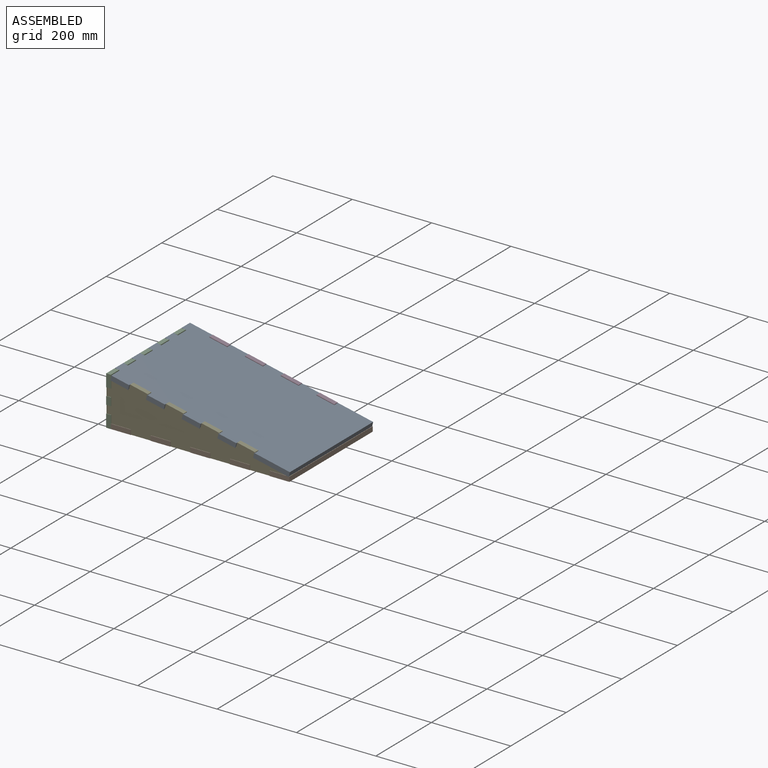
[diagram: assembled view]
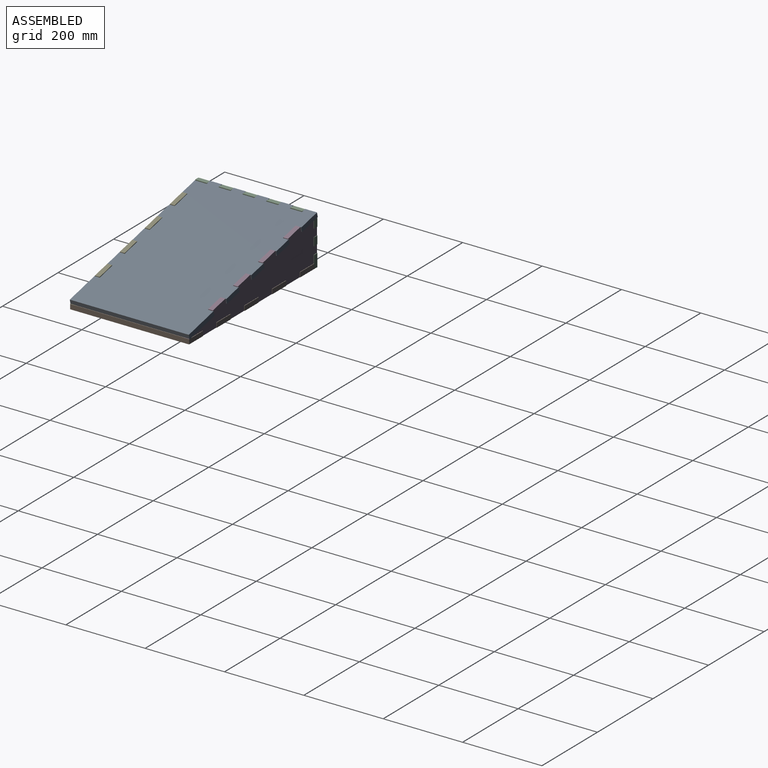
[diagram: assembled view, second angle]
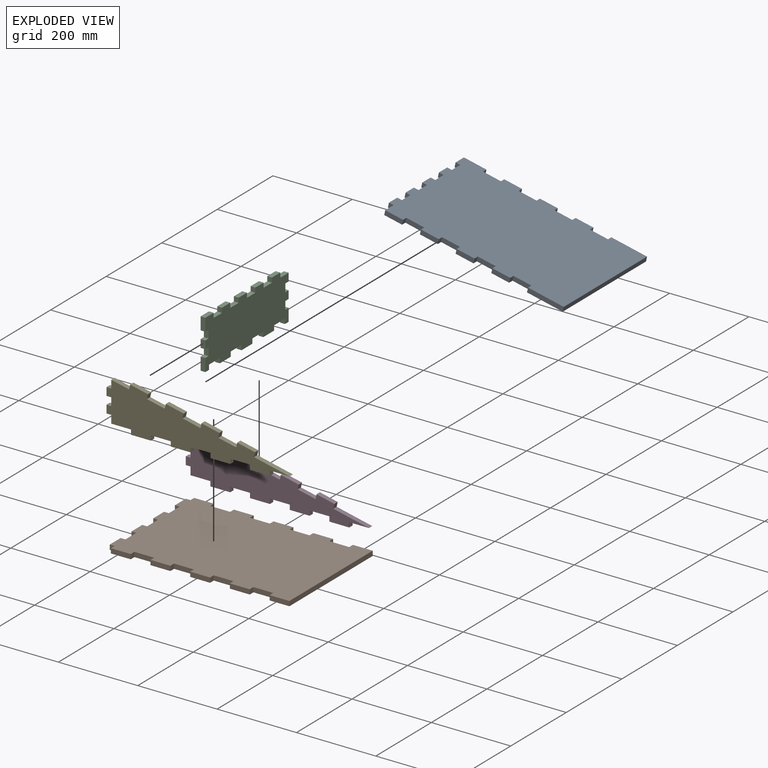
[diagram: exploded view]
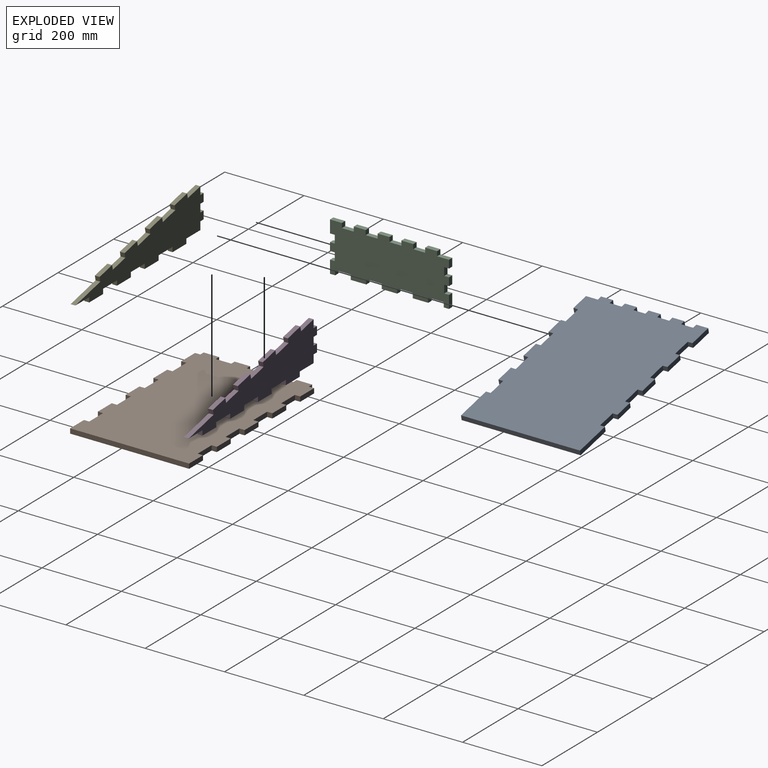
[diagram: exploded view, second angle]
ASSEMBLY  parts=5 mates=14
PART A: 56 faces, bbox 464.2x300x114.3 mm
  f0: plane 30x11.71mm, normal (-0.98,0,0.22), area 360mm2, adj f1,f53,f54,f55
  f1: plane 14.32x14.32mm, normal (0,-1,0), area 144mm2, adj f0,f2,f54,f55
  f2: plane 30x11.71mm, normal (-0.98,0,0.22), area 360mm2, adj f1,f3,f54,f55
  f3: plane 14.32x14.32mm, normal (0,1,0), area 144mm2, adj f2,f4,f54,f55
  f4: plane 30x11.71mm, normal (-0.98,0,0.22), area 360mm2, adj f3,f5,f54,f55
  f5: plane 14.32x14.32mm, normal (0,-1,0), area 144mm2, adj f4,f6,f54,f55
  f6: plane 30x11.71mm, normal (-0.98,0,0.22), area 360mm2, adj f5,f7,f54,f55
  f7: plane 14.32x14.32mm, normal (0,1,0), area 144mm2, adj f6,f8,f54,f55
  f8: plane 30x11.71mm, normal (-0.98,0,0.22), area 360mm2, adj f7,f9,f54,f55
  f9: plane 14.32x14.32mm, normal (0,-1,0), area 144mm2, adj f8,f10,f54,f55
  f10: plane 30x11.71mm, normal (-0.98,0,0.22), area 360mm2, adj f9,f11,f54,f55
  f11: plane 14.32x14.32mm, normal (0,1,0), area 144mm2, adj f10,f12,f54,f55
  f12: plane 30x11.71mm, normal (-0.98,0,0.22), area 360mm2, adj f11,f13,f54,f55
  f13: plane 14.32x14.32mm, normal (0,-1,0), area 144mm2, adj f12,f14,f54,f55
  f14: plane 30x11.71mm, normal (-0.98,0,0.22), area 360mm2, adj f13,f15,f54,f55
  f15: plane 14.32x14.32mm, normal (0,1,0), area 144mm2, adj f14,f16,f54,f55
  f16: plane 30x11.71mm, normal (-0.98,0,0.22), area 360mm2, adj f15,f17,f54,f55
  f17: plane 14.32x14.32mm, normal (0,-1,0), area 144mm2, adj f16,f18,f54,f55
  f18: plane 29.99x11.71mm, normal (-0.98,0,0.22), area 359.9mm2, adj f17,f19,f54,f55
  f19: plane 47.6x21.71mm, normal (0,-1,0), area 553.1mm2, adj f18,f20,f54,f55
  f20: plane 12.02x11.71mm, normal (0.98,0,-0.22), area 144.2mm2, adj f19,f21,f54,f55
  f21: plane 47.59x21.71mm, normal (0,-1,0), area 553mm2, adj f20,f22,f54,f55
  f22: plane 12.02x11.71mm, normal (-0.98,0,0.22), area 144.2mm2, adj f21,f23,f54,f55
  f23: plane 47.59x21.71mm, normal (0,-1,0), area 553mm2, adj f22,f24,f54,f55
  f24: plane 12.02x11.71mm, normal (0.98,0,-0.22), area 144.2mm2, adj f23,f25,f54,f55
  f25: plane 47.59x21.71mm, normal (0,-1,0), area 553mm2, adj f24,f26,f54,f55
  f26: plane 12.02x11.71mm, normal (-0.98,0,0.22), area 144.2mm2, adj f25,f27,f54,f55
  f27: plane 47.59x21.71mm, normal (0,-1,0), area 553mm2, adj f26,f28,f54,f55
  f28: plane 12.02x11.71mm, normal (0.98,0,-0.22), area 144.2mm2, adj f27,f29,f54,f55
  f29: plane 47.59x21.71mm, normal (0,-1,0), area 553mm2, adj f28,f30,f54,f55
  f30: plane 12.02x11.71mm, normal (-0.98,0,0.22), area 144.2mm2, adj f29,f31,f54,f55
  f31: plane 47.59x21.71mm, normal (0,-1,0), area 553mm2, adj f30,f32,f54,f55
  f32: plane 12.02x11.71mm, normal (0.98,0,-0.22), area 144.2mm2, adj f31,f33,f54,f55
  f33: plane 47.59x21.71mm, normal (0,-1,0), area 553mm2, adj f32,f34,f54,f55
  f34: plane 12.02x11.71mm, normal (-0.98,0,0.22), area 144.2mm2, adj f33,f35,f54,f55
  f35: plane 92.58x31.71mm, normal (0,-1,0), area 1106mm2, adj f34,f36,f54,f55
  f36: plane 299.96x11.71mm, normal (0.98,0,-0.22), area 3599.5mm2, adj f35,f37,f54,f55
  f37: plane 92.58x31.71mm, normal (0,1,0), area 1106mm2, adj f36,f38,f54,f55
  f38: plane 12.02x11.71mm, normal (-0.98,0,0.22), area 144.2mm2, adj f37,f39,f54,f55
  f39: plane 47.59x21.71mm, normal (0,1,0), area 553mm2, adj f38,f40,f54,f55
  f40: plane 12.02x11.71mm, normal (0.98,0,-0.22), area 144.2mm2, adj f39,f41,f54,f55
  f41: plane 47.59x21.71mm, normal (0,1,0), area 553mm2, adj f40,f42,f54,f55
  f42: plane 12.02x11.71mm, normal (-0.98,0,0.22), area 144.2mm2, adj f41,f43,f54,f55
  f43: plane 47.59x21.71mm, normal (0,1,0), area 553mm2, adj f42,f44,f54,f55
  f44: plane 12.02x11.71mm, normal (0.98,0,-0.22), area 144.2mm2, adj f43,f45,f54,f55
  f45: plane 47.59x21.71mm, normal (0,1,0), area 553mm2, adj f44,f46,f54,f55
  f46: plane 12.02x11.71mm, normal (-0.98,0,0.22), area 144.2mm2, adj f45,f47,f54,f55
  f47: plane 47.59x21.71mm, normal (0,1,0), area 553mm2, adj f46,f48,f54,f55
  f48: plane 12.02x11.71mm, normal (0.98,0,-0.22), area 144.2mm2, adj f47,f49,f54,f55
  f49: plane 47.59x21.71mm, normal (0,1,0), area 553mm2, adj f48,f50,f54,f55
  f50: plane 12.02x11.71mm, normal (-0.98,0,0.22), area 144.2mm2, adj f49,f51,f54,f55
  f51: plane 47.59x21.71mm, normal (0,1,0), area 553mm2, adj f50,f52,f54,f55
  f52: plane 12.02x11.71mm, normal (0.98,0,-0.22), area 144.2mm2, adj f51,f53,f54,f55
  f53: plane 59.31x24.32mm, normal (0,1,0), area 697.1mm2, adj f0,f52,f54,f55
  f54: plane 461.6x299.96mm, normal (0.22,0,0.98), area 135609mm2, adj f0,f1,f2,f3,f4,f5,f6,f7
  f55: plane 461.6x299.96mm, normal (-0.22,0,-0.98), area 135609mm2, adj f0,f1,f2,f3,f4,f5,f6,f7
PART B: 54 faces, bbox 461.9x300x12 mm
  f0: plane 299.96x12mm, normal (1,0,0), area 3599.5mm2, adj f1,f51,f52,f53
  f1: plane 49.89x12mm, normal (0,-1,0), area 598.7mm2, adj f0,f2,f52,f53
  f2: plane 13.21x12mm, normal (-1,0,0), area 158.5mm2, adj f1,f3,f52,f53
  f3: plane 50x12mm, normal (0,-1,0), area 600mm2, adj f2,f4,f52,f53
  f4: plane 13.21x12mm, normal (1,0,0), area 158.5mm2, adj f3,f5,f52,f53
  f5: plane 50x12mm, normal (0,-1,0), area 600mm2, adj f4,f6,f52,f53
  f6: plane 13.21x12mm, normal (-1,0,0), area 158.5mm2, adj f5,f7,f52,f53
  f7: plane 50x12mm, normal (0,-1,0), area 600mm2, adj f6,f8,f52,f53
  f8: plane 13.21x12mm, normal (1,0,0), area 158.5mm2, adj f7,f9,f52,f53
  f9: plane 50x12mm, normal (0,-1,0), area 600mm2, adj f8,f10,f52,f53
  f10: plane 13.21x12mm, normal (-1,0,0), area 158.5mm2, adj f9,f11,f52,f53
  f11: plane 50x12mm, normal (0,-1,0), area 600mm2, adj f10,f12,f52,f53
  f12: plane 13.21x12mm, normal (1,0,0), area 158.5mm2, adj f11,f13,f52,f53
  f13: plane 50x12mm, normal (0,-1,0), area 600mm2, adj f12,f14,f52,f53
  f14: plane 13.21x12mm, normal (-1,0,0), area 158.5mm2, adj f13,f15,f52,f53
  f15: plane 50x12mm, normal (0,-1,0), area 600mm2, adj f14,f16,f52,f53
  f16: plane 13.21x12mm, normal (1,0,0), area 158.5mm2, adj f15,f17,f52,f53
  f17: plane 50x12mm, normal (0,-1,0), area 600mm2, adj f16,f18,f52,f53
  f18: plane 13.21x12mm, normal (-1,0,0), area 158.5mm2, adj f17,f19,f52,f53
  f19: plane 12.02x12mm, normal (0,-1,0), area 144.2mm2, adj f18,f20,f52,f53
  f20: plane 39.08x12mm, normal (-1,0,0), area 468.9mm2, adj f19,f21,f52,f53
  f21: plane 12.02x12mm, normal (0,1,0), area 144.2mm2, adj f20,f22,f52,f53
  f22: plane 39.08x12mm, normal (-1,0,0), area 468.9mm2, adj f21,f23,f52,f53
  f23: plane 12.02x12mm, normal (0,-1,0), area 144.2mm2, adj f22,f24,f52,f53
  f24: plane 39.08x12mm, normal (-1,0,0), area 468.9mm2, adj f23,f25,f52,f53
  f25: plane 12.02x12mm, normal (0,1,0), area 144.2mm2, adj f24,f26,f52,f53
  f26: plane 39.08x12mm, normal (-1,0,0), area 468.9mm2, adj f25,f27,f52,f53
  f27: plane 12.02x12mm, normal (0,-1,0), area 144.2mm2, adj f26,f28,f52,f53
  f28: plane 39.08x12mm, normal (-1,0,0), area 468.9mm2, adj f27,f29,f52,f53
  f29: plane 12.02x12mm, normal (0,1,0), area 144.2mm2, adj f28,f30,f52,f53
  f30: plane 39.08x12mm, normal (-1,0,0), area 468.9mm2, adj f29,f31,f52,f53
  f31: plane 12.02x12mm, normal (0,-1,0), area 144.2mm2, adj f30,f32,f52,f53
  f32: plane 39.08x12mm, normal (-1,0,0), area 468.9mm2, adj f31,f33,f52,f53
  f33: plane 12.02x12mm, normal (0,1,0), area 144.2mm2, adj f32,f34,f52,f53
  f34: plane 13.21x12mm, normal (-1,0,0), area 158.5mm2, adj f33,f35,f52,f53
  f35: plane 50x12mm, normal (0,1,0), area 600mm2, adj f34,f36,f52,f53
  f36: plane 13.21x12mm, normal (1,0,0), area 158.5mm2, adj f35,f37,f52,f53
  f37: plane 50x12mm, normal (0,1,0), area 600mm2, adj f36,f38,f52,f53
  f38: plane 13.21x12mm, normal (-1,0,0), area 158.5mm2, adj f37,f39,f52,f53
  f39: plane 50x12mm, normal (0,1,0), area 600mm2, adj f38,f40,f52,f53
  f40: plane 13.21x12mm, normal (1,0,0), area 158.5mm2, adj f39,f41,f52,f53
  f41: plane 50x12mm, normal (0,1,0), area 600mm2, adj f40,f42,f52,f53
  f42: plane 13.21x12mm, normal (-1,0,0), area 158.5mm2, adj f41,f43,f52,f53
  f43: plane 50x12mm, normal (0,1,0), area 600mm2, adj f42,f44,f52,f53
  f44: plane 13.21x12mm, normal (1,0,0), area 158.5mm2, adj f43,f45,f52,f53
  f45: plane 50x12mm, normal (0,1,0), area 600mm2, adj f44,f46,f52,f53
  f46: plane 13.21x12mm, normal (-1,0,0), area 158.5mm2, adj f45,f47,f52,f53
  f47: plane 50x12mm, normal (0,1,0), area 600mm2, adj f46,f48,f52,f53
  f48: plane 13.21x12mm, normal (1,0,0), area 158.5mm2, adj f47,f49,f52,f53
  f49: plane 50x12mm, normal (0,1,0), area 600mm2, adj f48,f50,f52,f53
  f50: plane 13.21x12mm, normal (-1,0,0), area 158.5mm2, adj f49,f51,f52,f53
  f51: plane 49.89x12mm, normal (0,1,0), area 598.7mm2, adj f0,f50,f52,f53
  f52: plane 461.91x299.96mm, normal (0,0,-1), area 131543mm2, adj f0,f1,f2,f3,f4,f5,f6,f7
  f53: plane 461.91x299.96mm, normal (0,0,1), area 131543mm2, adj f0,f1,f2,f3,f4,f5,f6,f7
PART C: 56 faces, bbox 12x300x123.7 mm
  f0: plane 30x12mm, normal (0,0,1), area 360mm2, adj f40,f41,f53,f55
  f1: plane 30x12mm, normal (0,0,1), area 360mm2, adj f40,f41,f50,f52
  f2: plane 30x12mm, normal (0,0,1), area 360mm2, adj f40,f41,f45,f49
  f3: plane 30x12mm, normal (0,0,1), area 360mm2, adj f40,f41,f44,f47
  f4: plane 19.99x12mm, normal (0,1,0), area 239.9mm2, adj f5,f39,f40,f41
  f5: plane 12x12mm, normal (0,0,1), area 144mm2, adj f4,f6,f40,f41
  f6: plane 32.01x12mm, normal (0,1,0), area 384.1mm2, adj f5,f7,f40,f41
  f7: plane 13.21x12mm, normal (0,0,-1), area 158.5mm2, adj f6,f8,f40,f41
  f8: plane 12.02x12mm, normal (0,-1,0), area 144.2mm2, adj f7,f9,f40,f41
  f9: plane 39.08x12mm, normal (0,0,-1), area 468.9mm2, adj f8,f10,f40,f41
  f10: plane 12.02x12mm, normal (0,1,0), area 144.2mm2, adj f9,f11,f40,f41
  f11: plane 39.08x12mm, normal (0,0,-1), area 468.9mm2, adj f10,f12,f40,f41
  f12: plane 12.02x12mm, normal (0,-1,0), area 144.2mm2, adj f11,f13,f40,f41
  f13: plane 39.08x12mm, normal (0,0,-1), area 468.9mm2, adj f12,f14,f40,f41
  f14: plane 12.02x12mm, normal (0,1,0), area 144.2mm2, adj f13,f15,f40,f41
  f15: plane 39.08x12mm, normal (0,0,-1), area 468.9mm2, adj f14,f16,f40,f41
  f16: plane 12.02x12mm, normal (0,-1,0), area 144.2mm2, adj f15,f17,f40,f41
  f17: plane 39.08x12mm, normal (0,0,-1), area 468.9mm2, adj f16,f18,f40,f41
  f18: plane 12.02x12mm, normal (0,1,0), area 144.2mm2, adj f17,f19,f40,f41
  f19: plane 39.08x12mm, normal (0,0,-1), area 468.9mm2, adj f18,f20,f40,f41
  f20: plane 12.02x12mm, normal (0,-1,0), area 144.2mm2, adj f19,f21,f40,f41
  f21: plane 39.08x12mm, normal (0,0,-1), area 468.9mm2, adj f20,f22,f40,f41
  f22: plane 12.02x12mm, normal (0,1,0), area 144.2mm2, adj f21,f23,f40,f41
  f23: plane 13.21x12mm, normal (0,0,-1), area 158.5mm2, adj f22,f24,f40,f41
  f24: plane 32.01x12mm, normal (0,-1,0), area 384.1mm2, adj f23,f25,f40,f41
  f25: plane 12x12mm, normal (0,0,1), area 144mm2, adj f24,f26,f40,f41
  f26: plane 19.99x12mm, normal (0,-1,0), area 239.9mm2, adj f25,f27,f40,f41
  f27: plane 12x12mm, normal (0,0,-1), area 144mm2, adj f26,f28,f40,f41
  f28: plane 19.99x12mm, normal (0,-1,0), area 239.9mm2, adj f27,f29,f40,f41
  f29: plane 12x12mm, normal (0,0,1), area 144mm2, adj f28,f30,f40,f41
  f30: plane 19.99x12mm, normal (0,-1,0), area 239.9mm2, adj f29,f31,f40,f41
  f31: plane 12x12mm, normal (0,0,-1), area 144mm2, adj f30,f32,f40,f41
  f32: plane 31.73x12mm, normal (0,-1,0), area 380.7mm2, adj f31,f40,f41,f54
  f33: plane 30x12mm, normal (0,0,1), area 360mm2, adj f34,f40,f41,f43
  f34: plane 20x12mm, normal (0,1,0), area 239.9mm2, adj f33,f35,f40,f41
  f35: plane 12x12mm, normal (0,0,-1), area 144mm2, adj f34,f36,f40,f41
  f36: plane 19.99x12mm, normal (0,1,0), area 239.9mm2, adj f35,f37,f40,f41
  f37: plane 12x12mm, normal (0,0,1), area 144mm2, adj f36,f38,f40,f41
  f38: plane 19.99x12mm, normal (0,1,0), area 239.9mm2, adj f37,f39,f40,f41
  f39: plane 12x12mm, normal (0,0,-1), area 144mm2, adj f4,f38,f40,f41
  f40: plane 299.96x123.71mm, normal (-1,0,0), area 32510mm2, adj f0,f1,f2,f3,f4,f5,f6,f7
  f41: plane 299.96x123.71mm, normal (1,0,0), area 32510mm2, adj f0,f1,f2,f3,f4,f5,f6,f7
  f42: plane 30x12mm, normal (0,0,1), area 360mm2, adj f40,f41,f43,f44
  f43: plane 12x11.73mm, normal (0,1,0), area 140.8mm2, adj f33,f40,f41,f42
  f44: plane 12x11.73mm, normal (0,-1,0), area 140.8mm2, adj f3,f40,f41,f42
  f45: plane 12x11.73mm, normal (0,-1,0), area 140.8mm2, adj f2,f40,f41,f46
  f46: plane 30x12mm, normal (0,0,1), area 360mm2, adj f40,f41,f45,f47
  f47: plane 12x11.73mm, normal (0,1,0), area 140.8mm2, adj f3,f40,f41,f46
  f48: plane 30x12mm, normal (0,0,1), area 360mm2, adj f40,f41,f49,f50
  f49: plane 12x11.73mm, normal (0,1,0), area 140.8mm2, adj f2,f40,f41,f48
  f50: plane 12x11.73mm, normal (0,-1,0), area 140.8mm2, adj f1,f40,f41,f48
  f51: plane 30x12mm, normal (0,0,1), area 360mm2, adj f40,f41,f52,f53
  f52: plane 12x11.73mm, normal (0,1,0), area 140.8mm2, adj f1,f40,f41,f51
  f53: plane 12x11.73mm, normal (0,-1,0), area 140.8mm2, adj f0,f40,f41,f51
  f54: plane 29.99x12mm, normal (0,0,1), area 359.9mm2, adj f32,f40,f41,f55
  f55: plane 12x11.73mm, normal (0,1,0), area 140.8mm2, adj f0,f40,f41,f54
PART D: 45 faces, bbox 461.8x12x113.7 mm
  f0: plane 19.99x12mm, normal (-1,0,0), area 239.9mm2, adj f1,f42,f43,f44
  f1: plane 50x12mm, normal (0,0,-1), area 600mm2, adj f0,f2,f43,f44
  f2: plane 12.02x12mm, normal (-1,0,0), area 144.2mm2, adj f1,f3,f43,f44
  f3: plane 50x12mm, normal (0,0,-1), area 600mm2, adj f2,f4,f43,f44
  f4: plane 12.02x12mm, normal (1,0,0), area 144.2mm2, adj f3,f5,f43,f44
  f5: plane 50x12mm, normal (0,0,-1), area 600mm2, adj f4,f6,f43,f44
  f6: plane 12.02x12mm, normal (-1,0,0), area 144.2mm2, adj f5,f7,f43,f44
  f7: plane 50x12mm, normal (0,0,-1), area 600mm2, adj f6,f8,f43,f44
  f8: plane 12.02x12mm, normal (1,0,0), area 144.2mm2, adj f7,f9,f43,f44
  f9: plane 50x12mm, normal (0,0,-1), area 600mm2, adj f8,f10,f43,f44
  f10: plane 12.02x12mm, normal (-1,0,0), area 144.2mm2, adj f9,f11,f43,f44
  f11: plane 50x12mm, normal (0,0,-1), area 600mm2, adj f10,f12,f43,f44
  f12: plane 12.02x12mm, normal (1,0,0), area 144.2mm2, adj f11,f13,f43,f44
  f13: plane 50x12mm, normal (0,0,-1), area 600mm2, adj f12,f14,f43,f44
  f14: plane 12.02x12mm, normal (-1,0,0), area 144.2mm2, adj f13,f15,f43,f44
  f15: plane 50x12mm, normal (0,0,-1), area 600mm2, adj f14,f16,f43,f44
  f16: plane 12.02x12mm, normal (1,0,0), area 144.2mm2, adj f15,f17,f43,f44
  f17: plane 49.8x12mm, normal (0,0,-1), area 597.6mm2, adj f16,f18,f43,f44
  f18: plane 89.89x19.98mm, normal (0.22,0,0.98), area 1105mm2, adj f17,f19,f43,f44
  f19: plane 12x11.73mm, normal (0.98,0,-0.22), area 144.2mm2, adj f18,f20,f43,f44
  f20: plane 44.99x12mm, normal (0.22,0,0.98), area 553mm2, adj f19,f21,f43,f44
  f21: plane 12x11.73mm, normal (-0.98,0,0.22), area 144.2mm2, adj f20,f22,f43,f44
  f22: plane 44.99x12mm, normal (0.22,0,0.98), area 553mm2, adj f21,f23,f43,f44
  f23: plane 12x11.73mm, normal (0.98,0,-0.22), area 144.2mm2, adj f22,f24,f43,f44
  f24: plane 44.99x12mm, normal (0.22,0,0.98), area 553mm2, adj f23,f25,f43,f44
  f25: plane 12x11.73mm, normal (-0.98,0,0.22), area 144.2mm2, adj f24,f26,f43,f44
  f26: plane 44.99x12mm, normal (0.22,0,0.98), area 553mm2, adj f25,f27,f43,f44
  f27: plane 12x11.73mm, normal (0.98,0,-0.22), area 144.2mm2, adj f26,f28,f43,f44
  f28: plane 44.99x12mm, normal (0.22,0,0.98), area 553mm2, adj f27,f29,f43,f44
  f29: plane 12x11.73mm, normal (-0.98,0,0.22), area 144.2mm2, adj f28,f30,f43,f44
  f30: plane 44.99x12mm, normal (0.22,0,0.98), area 553mm2, adj f29,f31,f43,f44
  f31: plane 12x11.73mm, normal (0.98,0,-0.22), area 144.2mm2, adj f30,f32,f43,f44
  f32: plane 44.99x12mm, normal (0.22,0,0.98), area 553mm2, adj f31,f33,f43,f44
  f33: plane 12x11.73mm, normal (-0.98,0,0.22), area 144.2mm2, adj f32,f34,f43,f44
  f34: plane 44.99x12mm, normal (0.22,0,0.98), area 553mm2, adj f33,f35,f43,f44
  f35: plane 19.99x12mm, normal (-1,0,0), area 239.8mm2, adj f34,f36,f43,f44
  f36: plane 12.02x12mm, normal (0,0,1), area 144.2mm2, adj f35,f37,f43,f44
  f37: plane 19.99x12mm, normal (-1,0,0), area 239.9mm2, adj f36,f38,f43,f44
  f38: plane 12.02x12mm, normal (0,0,-1), area 144.2mm2, adj f37,f39,f43,f44
  f39: plane 19.99x12mm, normal (-1,0,0), area 239.9mm2, adj f38,f40,f43,f44
  f40: plane 12.02x12mm, normal (0,0,1), area 144.2mm2, adj f39,f41,f43,f44
  f41: plane 19.99x12mm, normal (-1,0,0), area 239.9mm2, adj f40,f42,f43,f44
  f42: plane 12.02x12mm, normal (0,0,-1), area 144.2mm2, adj f0,f41,f43,f44
  f43: plane 461.82x113.71mm, normal (0,-1,0), area 27580.2mm2, adj f0,f1,f2,f3,f4,f5,f6,f7
  f44: plane 461.82x113.71mm, normal (0,1,0), area 27580.2mm2, adj f0,f1,f2,f3,f4,f5,f6,f7
PART E: same geometry as D
PLACE A t=(-209.27,431.98,21.89)mm
PLACE B t=(-205.2,431.98,46.94)mm
PLACE C t=(-193.2,431.98,34.92)mm
PLACE D t=(-205.2,742.75,34.91)mm
PLACE E t=(-205.2,457.21,34.91)mm
MATE planar D.f2 <-> B.f36  axis (-1,0,0) through (-155.18,574.75,28.92)mm
MATE cylindrical A.f1 <-> C.f43  axis (0,-1,0) through (-211.2,551.97,140.76)mm
MATE planar B.f24 <-> C.f40  axis (-1,0,0) through (-217.2,392.91,28.94)mm
MATE planar B.f53 <-> C.f17  axis (0,0,1) through (16.46,431.98,34.94)mm
MATE planar A.f17 <-> C.f55  axis (0,-1,0) through (-211.2,311.99,140.76)mm
MATE planar B.f7 <-> E.f44  axis (0,-1,0) through (69.82,295.21,28.94)mm
MATE planar B.f2 <-> E.f16  axis (-1,0,0) through (194.82,288.61,28.94)mm
MATE planar C.f29 <-> E.f38  axis (0,0,1) through (-211.2,288,94.91)mm
MATE planar A.f17 <-> C.f55  axis (0,-1,0) through (-211.2,311.99,140.76)mm
MATE planar D.f43 <-> B.f41  axis (0,-1,0) through (-47.1,568.75,67.32)mm
MATE planar D.f2 <-> B.f36  axis (-1,0,0) through (-155.18,574.75,28.92)mm
MATE planar A.f13 <-> C.f52  axis (0,-1,0) through (-211.2,371.99,140.76)mm
MATE planar C.f35 <-> D.f36  axis (0,0,-1) through (-211.2,575.96,114.9)mm
MATE planar C.f22 <-> B.f19  axis (0,1,0) through (-211.2,295.21,28.93)mm
